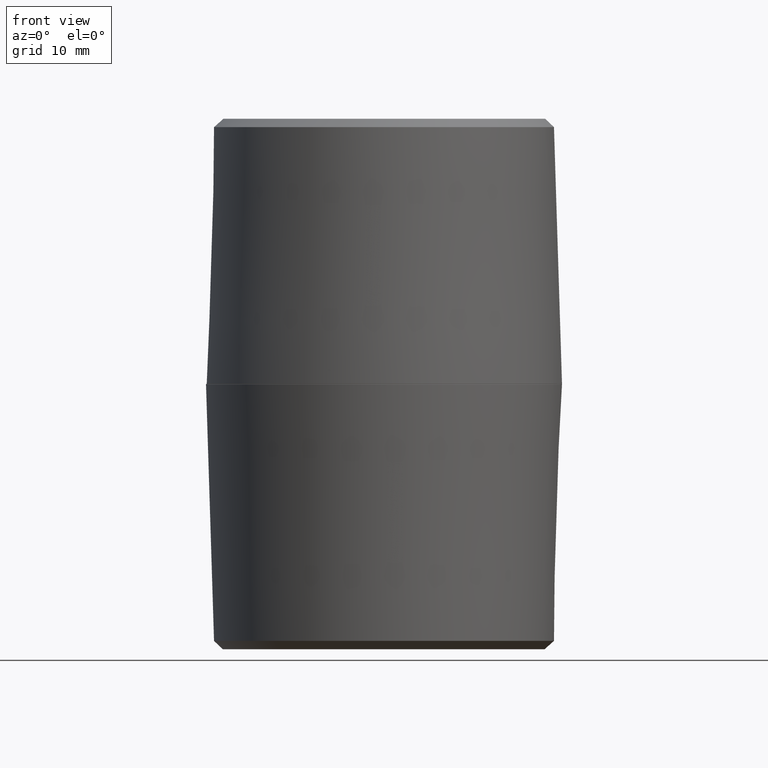
[diagram: clean part render]
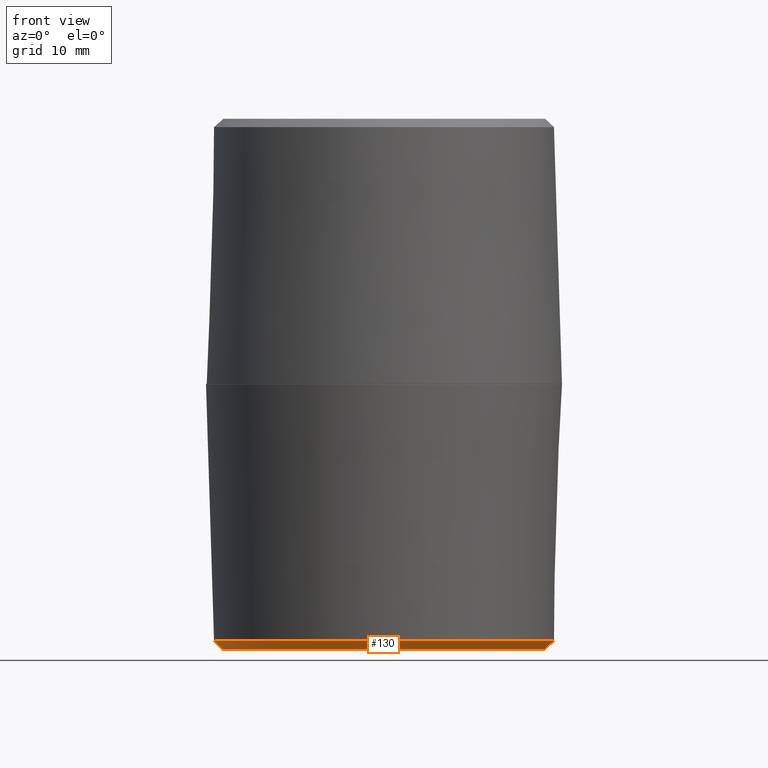
[diagram: same view with one face highlighted and labeled with its STEP entity id]
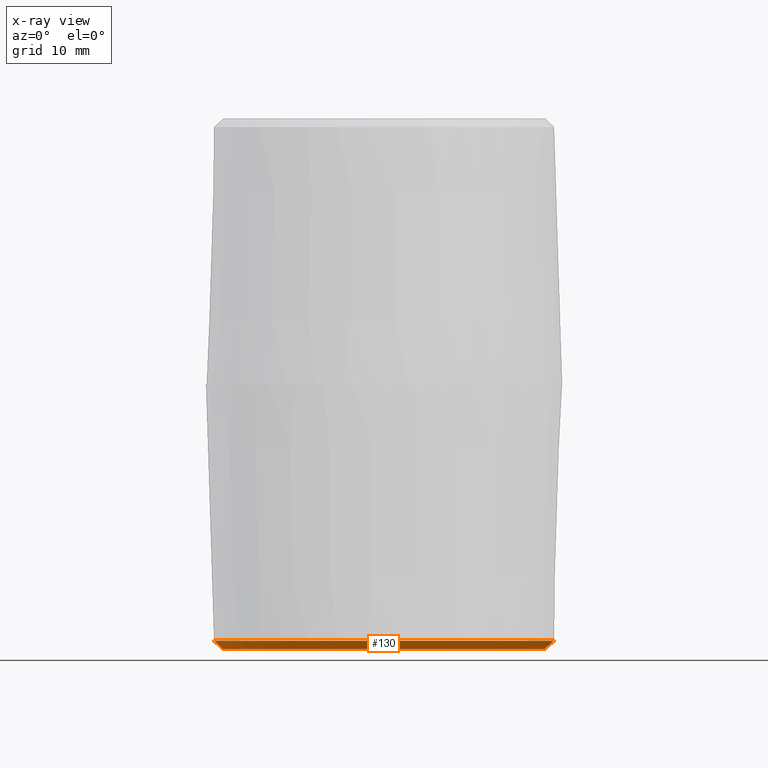
[diagram: x-ray of the same camera — body ghosted, the highlighted face saturated]
A machine part, front view. The second image highlights one B-rep face of the part: STEP entity #130.
The next image is the same camera in x-ray: the body ghosted, the highlighted face saturated — about 0% of this face is hidden behind the body in this view.
In plain terms, the highlighted conical surface has half-angle 45.895 deg.
Its self-contained STEP definition (entity closure, byte-faithful):
#20=CONICAL_SURFACE('',#163,0.61175216268264,0.801018860202793);
#26=FACE_OUTER_BOUND('',#35,.T.);
#35=EDGE_LOOP('',(#99,#100,#101,#102));
#43=LINE('',#235,#49);
#49=VECTOR('',#198,0.61175216268264);
#57=CIRCLE('',#164,0.627865230054466);
#58=CIRCLE('',#165,0.595639095310814);
#66=VERTEX_POINT('',#232);
#67=VERTEX_POINT('',#234);
#78=EDGE_CURVE('',#66,#66,#57,.T.);
#79=EDGE_CURVE('',#66,#67,#43,.T.);
#80=EDGE_CURVE('',#67,#67,#58,.T.);
#99=ORIENTED_EDGE('',*,*,#78,.T.);
#100=ORIENTED_EDGE('',*,*,#79,.T.);
#101=ORIENTED_EDGE('',*,*,#80,.T.);
#102=ORIENTED_EDGE('',*,*,#79,.F.);
#130=ADVANCED_FACE('',(#26),#20,.T.);
#163=AXIS2_PLACEMENT_3D('',#231,#194,#195);
#164=AXIS2_PLACEMENT_3D('',#233,#196,#197);
#165=AXIS2_PLACEMENT_3D('',#236,#199,#200);
#194=DIRECTION('center_axis',(0.,1.23082100709371E-15,1.));
#195=DIRECTION('ref_axis',(1.,-3.14215378780657E-17,0.));
#196=DIRECTION('center_axis',(0.,0.,-1.));
#197=DIRECTION('ref_axis',(1.,-6.12303176911189E-17,0.));
#198=DIRECTION('',(0.718065565180804,-7.91246274158635E-16,-0.695975462284104));
#199=DIRECTION('center_axis',(0.,0.,1.));
#200=DIRECTION('ref_axis',(1.,0.,0.));
#231=CARTESIAN_POINT('Origin',(0.,1.92221937517212E-17,-0.964382624572593));
#232=CARTESIAN_POINT('',(-0.627865230054466,1.5377755001377E-16,-0.948765249145187));
#233=CARTESIAN_POINT('Origin',(0.,3.84443875034424E-17,-0.948765249145187));
#234=CARTESIAN_POINT('',(-0.595639095310814,-7.29423420702636E-17,-0.98));
#235=CARTESIAN_POINT('',(-0.61175216268264,-3.64736452866342E-17,-0.964382624572593));
#236=CARTESIAN_POINT('Origin',(0.,0.,-0.98));